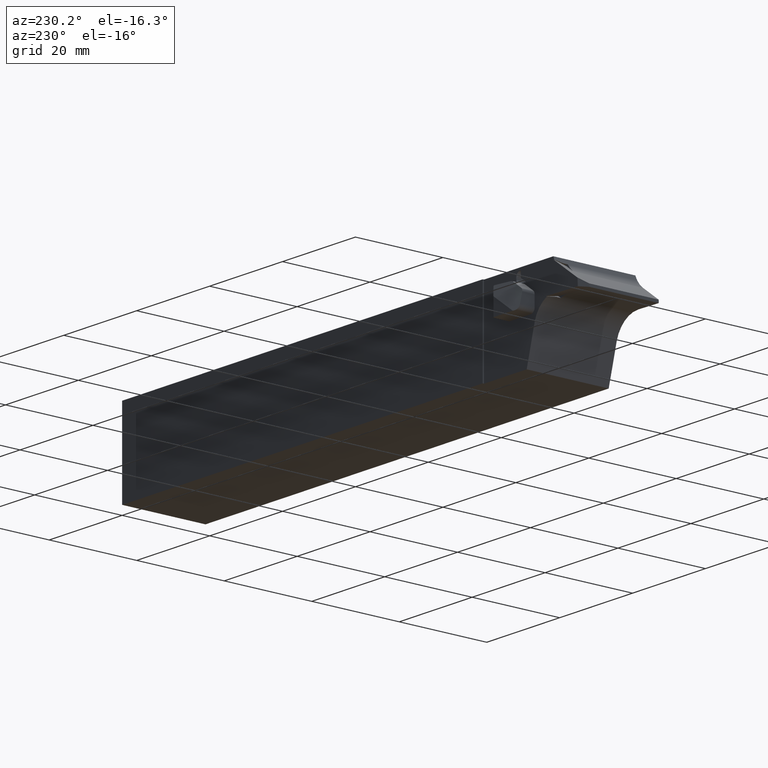
[diagram: clean part render]
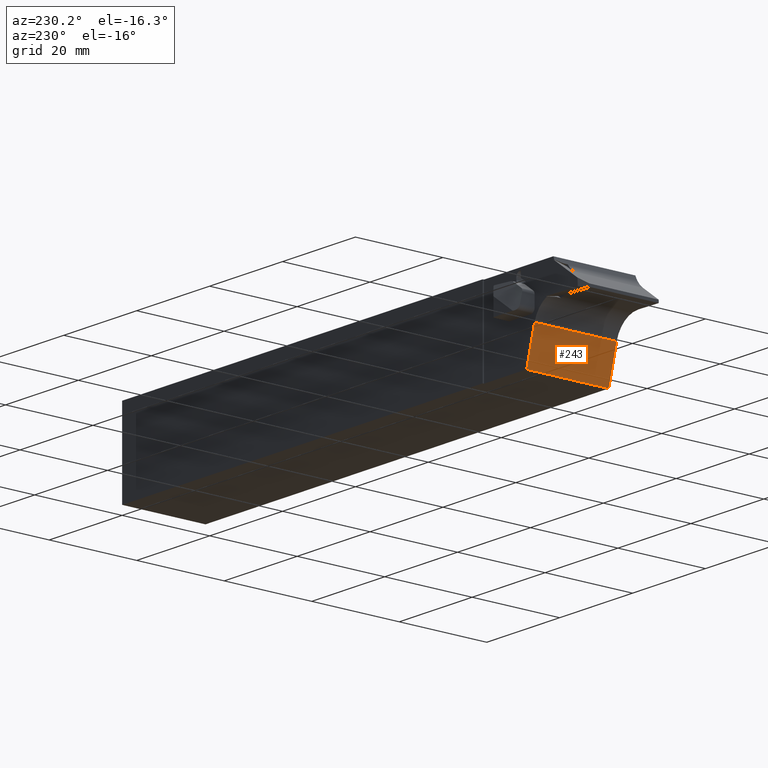
[diagram: same view with one face highlighted and labeled with its STEP entity id]
A machine part, auxiliary view. The second image highlights one B-rep face of the part: STEP entity #243.
In plain terms, the highlighted planar face has unit normal (0.9659, 0, 0.2588).
Its self-contained STEP definition (entity closure, byte-faithful):
#36 = AXIS2_PLACEMENT_3D ( 'NONE', #280, #1230, #883 ) ;
#191 = EDGE_LOOP ( 'NONE', ( #1132, #1438, #309, #687 ) ) ;
#209 = CARTESIAN_POINT ( 'NONE',  ( -110.6144449865125900, -19.04999999999997900, -38.09999999999994500 ) ) ;
#243 = ADVANCED_FACE ( 'NONE', ( #1200 ), #1594, .F. ) ;
#277 = CARTESIAN_POINT ( 'NONE',  ( -112.7915647579078400, -0.2999999999999934400, -29.97487839899016000 ) ) ;
#280 = CARTESIAN_POINT ( 'NONE',  ( -112.7915647579078400, 159.8378328572430000, -29.97487839899015000 ) ) ;
#281 = VERTEX_POINT ( 'NONE', #1506 ) ;
#309 = ORIENTED_EDGE ( 'NONE', *, *, #595, .T. ) ;
#383 = DIRECTION ( 'NONE',  ( 0.2588190451025185700, -7.888609052210126800E-031, -0.9659258262890688700 ) ) ;
#412 = EDGE_CURVE ( 'NONE', #281, #1334, #975, .T. ) ;
#440 = EDGE_CURVE ( 'NONE', #1486, #1288, #765, .T. ) ;
#465 = LINE ( 'NONE', #1122, #1585 ) ;
#546 = CARTESIAN_POINT ( 'NONE',  ( -112.7915647579078400, 159.8378328572430000, -29.97487839899015000 ) ) ;
#567 = VECTOR ( 'NONE', #383, 1000.000000000000200 ) ;
#571 = DIRECTION ( 'NONE',  ( -2.482138512326289500E-030, -1.000000000000000000, 0.0000000000000000000 ) ) ;
#595 = EDGE_CURVE ( 'NONE', #1486, #1334, #465, .T. ) ;
#687 = ORIENTED_EDGE ( 'NONE', *, *, #412, .F. ) ;
#765 = LINE ( 'NONE', #1118, #861 ) ;
#767 = CARTESIAN_POINT ( 'NONE',  ( -110.6144449865126100, -0.2999999999999959900, -38.09999999999995200 ) ) ;
#861 = VECTOR ( 'NONE', #1579, 1000.000000000000000 ) ;
#883 = DIRECTION ( 'NONE',  ( -0.2588190451025185700, 7.888609052210126800E-031, 0.9659258262890687600 ) ) ;
#975 = LINE ( 'NONE', #546, #1417 ) ;
#992 = DIRECTION ( 'NONE',  ( -0.2588190451025185700, 7.888609052210126800E-031, 0.9659258262890688700 ) ) ;
#1118 = CARTESIAN_POINT ( 'NONE',  ( -110.6144449865126100, -19.04999999999997900, -38.09999999999994500 ) ) ;
#1122 = CARTESIAN_POINT ( 'NONE',  ( -103.2046821851745200, -19.04999999999997600, -65.75361124662781300 ) ) ;
#1132 = ORIENTED_EDGE ( 'NONE', *, *, #1336, .T. ) ;
#1200 = FACE_OUTER_BOUND ( 'NONE', #191, .T. ) ;
#1230 = DIRECTION ( 'NONE',  ( 0.9659258262890688700, 2.366582715663036100E-030, 0.2588190451025186300 ) ) ;
#1288 = VERTEX_POINT ( 'NONE', #767 ) ;
#1334 = VERTEX_POINT ( 'NONE', #1527 ) ;
#1336 = EDGE_CURVE ( 'NONE', #281, #1288, #1564, .T. ) ;
#1417 = VECTOR ( 'NONE', #571, 1000.000000000000000 ) ;
#1438 = ORIENTED_EDGE ( 'NONE', *, *, #440, .F. ) ;
#1486 = VERTEX_POINT ( 'NONE', #209 ) ;
#1506 = CARTESIAN_POINT ( 'NONE',  ( -112.7915647579078400, -0.2999999999999934400, -29.97487839899015700 ) ) ;
#1527 = CARTESIAN_POINT ( 'NONE',  ( -112.7915647579078400, -19.04999999999999000, -29.97487839899015700 ) ) ;
#1564 = LINE ( 'NONE', #277, #567 ) ;
#1579 = DIRECTION ( 'NONE',  ( 2.482138512326289500E-030, 1.000000000000000000, 0.0000000000000000000 ) ) ;
#1585 = VECTOR ( 'NONE', #992, 1000.000000000000200 ) ;
#1594 = PLANE ( 'NONE',  #36 ) ;